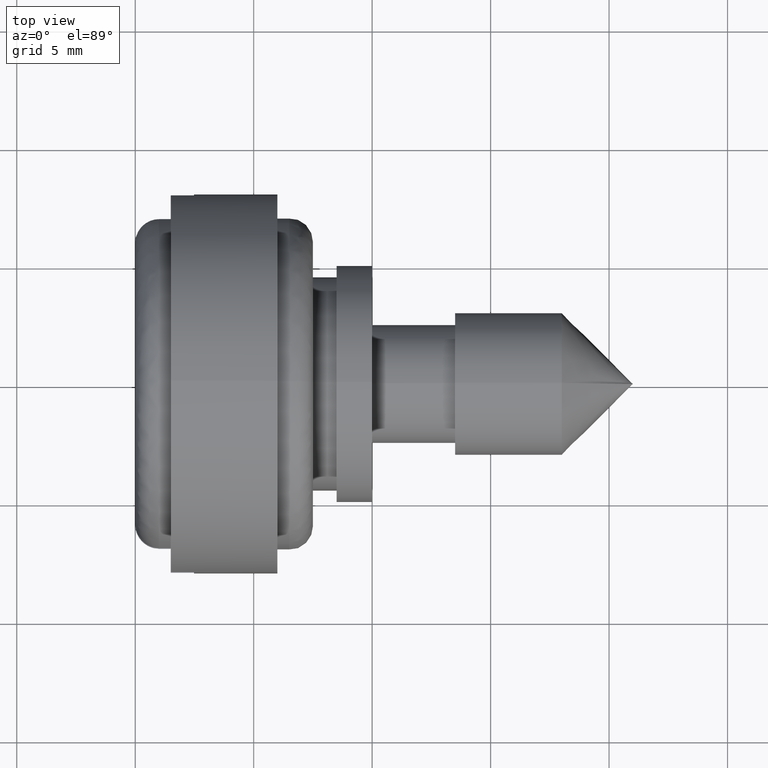
[diagram: clean part render]
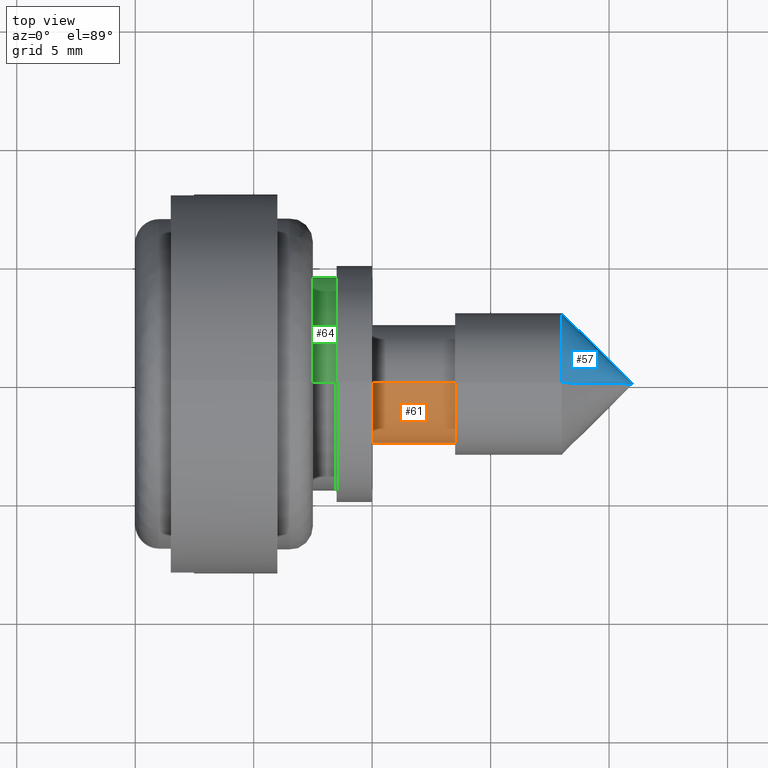
[diagram: same view with three faces highlighted in distinct colors, each labeled with its STEP entity id]
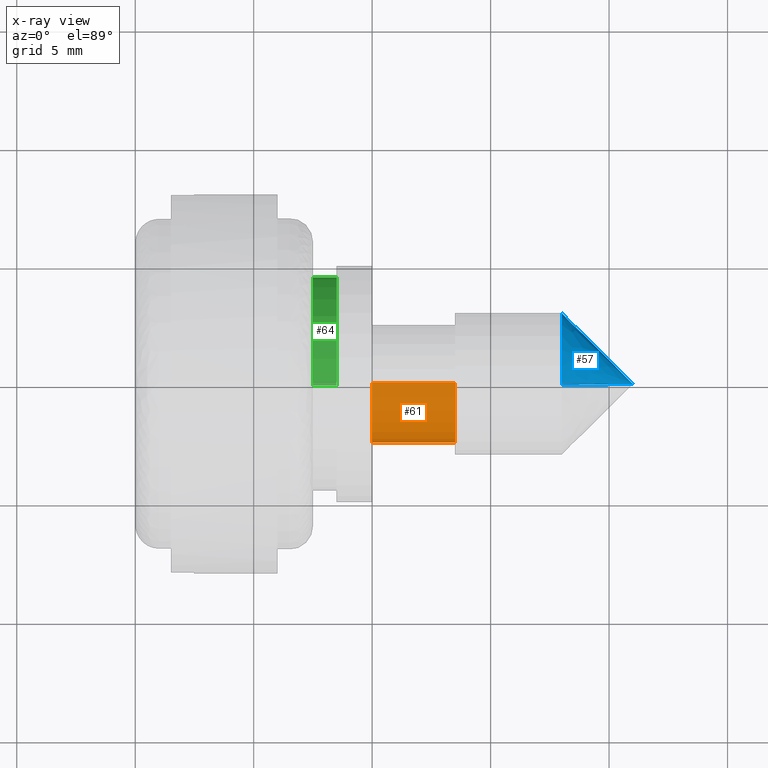
[diagram: x-ray of the same camera — body ghosted, the three highlighted faces saturated]
A machine part, top view with three faces highlighted in distinct colors.
The next image is the same camera in x-ray (body ghosted, the three faces saturated) — at least one of them is partly hidden behind the body in this view.
Their STEP definitions:

[orange] entity #61 — the highlighted cylindrical surface (partial cylindrical patch) has radius 2.5 mm, axis along (1, -0, -0).
#61=ADVANCED_FACE('',(#288),#287,.T.);
#287=CYLINDRICAL_SURFACE('',#564,2.50000000000E+00);
#288=FACE_OUTER_BOUND('',#565,.T.);
#561=CARTESIAN_POINT('',(0.00000000000E+00,0.00000000000E+00,0.00000000000E+00));
#562=DIRECTION('',(1.00000000000E+00,-0.00000000000E+00,-0.00000000000E+00));
#563=DIRECTION('',(-0.00000000000E+00,-0.00000000000E+00,-1.00000000000E+00));
#564=AXIS2_PLACEMENT_3D('',#561,#562,#563);
#565=EDGE_LOOP('',(#750,#751,#752,#753));
#750=ORIENTED_EDGE('',*,*,#843,.F.);
#751=ORIENTED_EDGE('',*,*,#860,.T.);
#752=ORIENTED_EDGE('',*,*,#838,.T.);
#753=ORIENTED_EDGE('',*,*,#861,.F.);
#838=EDGE_CURVE('',#1117,#1118,#1119,.T.);
#843=EDGE_CURVE('',#1146,#1145,#1153,.T.);
#860=EDGE_CURVE('',#1146,#1117,#1267,.T.);
#861=EDGE_CURVE('',#1145,#1118,#1273,.T.);
#1117=VERTEX_POINT('',#1530);
#1118=VERTEX_POINT('',#1531);
#1119=CIRCLE('',#1535,2.50000000000E+00);
#1145=VERTEX_POINT('',#1550);
#1146=VERTEX_POINT('',#1551);
#1153=CIRCLE('',#1559,2.50000000000E+00);
#1267=(BOUNDED_CURVE() B_SPLINE_CURVE(1,(#1628,#1629),.UNSPECIFIED.,.F.,.F.) B_SPLINE_CURVE_WITH_KNOTS((2,2),(8.33333358172E-02,9.16666664408E-01),.UNSPECIFIED.) CURVE() GEOMETRIC_REPRESENTATION_ITEM() RATIONAL_B_SPLINE_CURVE((1.00000000000E+00,1.00000000000E+00)) REPRESENTATION_ITEM('') );
#1273=(BOUNDED_CURVE() B_SPLINE_CURVE(1,(#1630,#1631),.UNSPECIFIED.,.F.,.F.) B_SPLINE_CURVE_WITH_KNOTS((2,2),(8.33333333333E-02,9.16666666667E-01),.UNSPECIFIED.) CURVE() GEOMETRIC_REPRESENTATION_ITEM() RATIONAL_B_SPLINE_CURVE((7.50000000000E-01,7.50000000000E-01)) REPRESENTATION_ITEM('') );
#1530=CARTESIAN_POINT('',(1.35000000000E+01,1.48029736617E-16,-2.50000000000E+00));
#1531=CARTESIAN_POINT('',(1.35000000000E+01,0.00000000000E+00,2.50000000000E+00));
#1532=CARTESIAN_POINT('',(1.35000000000E+01,0.00000000000E+00,0.00000000000E+00));
#1533=DIRECTION('',(-1.00000000000E+00,0.00000000000E+00,0.00000000000E+00));
#1534=DIRECTION('',(0.00000000000E+00,-1.22460635382E-16,1.00000000000E+00));
#1535=AXIS2_PLACEMENT_3D('',#1532,#1533,#1534);
#1550=CARTESIAN_POINT('',(1.00000000000E+01,0.00000000000E+00,2.50000000000E+00));
#1551=CARTESIAN_POINT('',(1.00000000000E+01,1.48029736617E-16,-2.50000000000E+00));
#1556=CARTESIAN_POINT('',(1.00000000000E+01,0.00000000000E+00,0.00000000000E+00));
#1557=DIRECTION('',(-1.00000000000E+00,0.00000000000E+00,0.00000000000E+00));
#1558=DIRECTION('',(0.00000000000E+00,-1.22460635382E-16,1.00000000000E+00));
#1559=AXIS2_PLACEMENT_3D('',#1556,#1557,#1558);
#1628=CARTESIAN_POINT('',(1.00000000104E+01,0.00000000000E+00,-2.50000000000E+00));
#1629=CARTESIAN_POINT('',(1.34999999905E+01,0.00000000000E+00,-2.50000000000E+00));
#1630=CARTESIAN_POINT('',(1.00000000000E+01,-1.48029736617E-16,2.50000000000E+00));
#1631=CARTESIAN_POINT('',(1.35000000000E+01,-1.48029736617E-16,2.50000000000E+00));

[blue] entity #57 — the highlighted face is a freeform B-spline surface patch.
#57=ADVANCED_FACE('',(#248),#247,.T.);
#247=( BOUNDED_SURFACE() B_SPLINE_SURFACE( 2,1,((#535,#536),(#537,#538),(#539,#540),(#541,#542),(#543,#544)), .UNSPECIFIED.,.F.,.F.,.F.) B_SPLINE_SURFACE_WITH_KNOTS((3,2,3),(2,2),(0.00000000000E+00,5.00000000000E-01,1.00000000000E+00),(0.00000000000E+00,1.00000000000E+00), .UNSPECIFIED. ) GEOMETRIC_REPRESENTATION_ITEM() RATIONAL_B_SPLINE_SURFACE(((1.00000000000E+00,1.00000000000E+00),(7.07106781187E-01,7.07106781187E-01),(1.00000000000E+00,1.00000000000E+00),(7.07106781187E-01,7.07106781187E-01),(1.00000000000E+00,1.00000000000E+00))) REPRESENTATION_ITEM('') SURFACE() );
#248=FACE_OUTER_BOUND('',#545,.T.);
#535=CARTESIAN_POINT('',(2.10000000000E+01,0.00000000000E+00,0.00000000000E+00));
#536=CARTESIAN_POINT('',(1.67573593129E+01,5.19573633741E-16,4.24264068712E+00));
#537=CARTESIAN_POINT('',(2.10000000000E+01,0.00000000000E+00,0.00000000000E+00));
#538=CARTESIAN_POINT('',(1.67573593129E+01,4.24264068712E+00,4.24264068712E+00));
#539=CARTESIAN_POINT('',(2.10000000000E+01,0.00000000000E+00,0.00000000000E+00));
#540=CARTESIAN_POINT('',(1.67573593129E+01,4.24264068712E+00,-2.59786816871E-16));
#541=CARTESIAN_POINT('',(2.10000000000E+01,0.00000000000E+00,0.00000000000E+00));
#542=CARTESIAN_POINT('',(1.67573593129E+01,4.24264068712E+00,-4.24264068712E+00));
#543=CARTESIAN_POINT('',(2.10000000000E+01,0.00000000000E+00,0.00000000000E+00));
#544=CARTESIAN_POINT('',(1.67573593129E+01,0.00000000000E+00,-4.24264068712E+00));
#545=EDGE_LOOP('',(#735,#736,#737));
#735=ORIENTED_EDGE('',*,*,#855,.T.);
#736=ORIENTED_EDGE('',*,*,#857,.F.);
#737=ORIENTED_EDGE('',*,*,#856,.F.);
#855=EDGE_CURVE('',#1236,#1228,#1237,.T.);
#856=EDGE_CURVE('',#1236,#1229,#1243,.T.);
#857=EDGE_CURVE('',#1229,#1228,#1249,.T.);
#1228=VERTEX_POINT('',#1609);
#1229=VERTEX_POINT('',#1610);
#1236=VERTEX_POINT('',#1615);
#1237=(BOUNDED_CURVE() B_SPLINE_CURVE(1,(#1616,#1617),.UNSPECIFIED.,.F.,.F.) B_SPLINE_CURVE_WITH_KNOTS((2,2),(0.00000000000E+00,7.07106783987E-01),.UNSPECIFIED.) CURVE() GEOMETRIC_REPRESENTATION_ITEM() RATIONAL_B_SPLINE_CURVE((1.00000000000E+00,1.00000000000E+00)) REPRESENTATION_ITEM('') );
#1243=(BOUNDED_CURVE() B_SPLINE_CURVE(1,(#1618,#1619),.UNSPECIFIED.,.F.,.F.) B_SPLINE_CURVE_WITH_KNOTS((2,2),(0.00000000000E+00,7.07106780467E-01),.UNSPECIFIED.) CURVE() GEOMETRIC_REPRESENTATION_ITEM() RATIONAL_B_SPLINE_CURVE((7.50000000000E-01,7.50000000000E-01)) REPRESENTATION_ITEM('') );
#1249=CIRCLE('',#1623,3.00000000000E+00);
#1609=CARTESIAN_POINT('',(1.80000000000E+01,0.00000000000E+00,-3.00000000000E+00));
#1610=CARTESIAN_POINT('',(1.80000000000E+01,0.00000000000E+00,3.00000000000E+00));
#1615=CARTESIAN_POINT('',(2.10000000000E+01,0.00000000000E+00,0.00000000000E+00));
#1616=CARTESIAN_POINT('',(2.10000000000E+01,0.00000000000E+00,0.00000000000E+00));
#1617=CARTESIAN_POINT('',(1.79999999881E+01,-7.34763815203E-16,-3.00000001188E+00));
#1618=CARTESIAN_POINT('',(2.10000000000E+01,0.00000000000E+00,0.00000000000E+00));
#1619=CARTESIAN_POINT('',(1.80000000031E+01,8.37382643779E-16,2.99999999695E+00));
#1620=CARTESIAN_POINT('',(1.80000000000E+01,0.00000000000E+00,0.00000000000E+00));
#1621=DIRECTION('',(-1.00000000000E+00,0.00000000000E+00,0.00000000000E+00));
#1622=DIRECTION('',(0.00000000000E+00,-1.22460635382E-16,1.00000000000E+00));
#1623=AXIS2_PLACEMENT_3D('',#1620,#1621,#1622);

[green] entity #64 — the highlighted cylindrical surface (partial cylindrical patch) has radius 4.5 mm, axis along (1, -0, -0).
#64=ADVANCED_FACE('',(#318),#317,.T.);
#317=CYLINDRICAL_SURFACE('',#579,4.50000000000E+00);
#318=FACE_OUTER_BOUND('',#580,.T.);
#576=CARTESIAN_POINT('',(0.00000000000E+00,0.00000000000E+00,0.00000000000E+00));
#577=DIRECTION('',(1.00000000000E+00,-0.00000000000E+00,-0.00000000000E+00));
#578=DIRECTION('',(-0.00000000000E+00,-0.00000000000E+00,-1.00000000000E+00));
#579=AXIS2_PLACEMENT_3D('',#576,#577,#578);
#580=EDGE_LOOP('',(#762,#763,#764,#765));
#762=ORIENTED_EDGE('',*,*,#847,.T.);
#763=ORIENTED_EDGE('',*,*,#864,.F.);
#764=ORIENTED_EDGE('',*,*,#850,.F.);
#765=ORIENTED_EDGE('',*,*,#865,.T.);
#847=EDGE_CURVE('',#1174,#1173,#1181,.T.);
#850=EDGE_CURVE('',#1201,#1202,#1203,.T.);
#864=EDGE_CURVE('',#1202,#1173,#1291,.T.);
#865=EDGE_CURVE('',#1201,#1174,#1297,.T.);
#1173=VERTEX_POINT('',#1570);
#1174=VERTEX_POINT('',#1571);
#1181=CIRCLE('',#1579,4.50000000000E+00);
#1201=VERTEX_POINT('',#1590);
#1202=VERTEX_POINT('',#1591);
#1203=CIRCLE('',#1595,4.50000000000E+00);
#1291=(BOUNDED_CURVE() B_SPLINE_CURVE(1,(#1636,#1637),.UNSPECIFIED.,.F.,.F.) B_SPLINE_CURVE_WITH_KNOTS((2,2),(8.33332935974E-02,9.16666633252E-01),.UNSPECIFIED.) CURVE() GEOMETRIC_REPRESENTATION_ITEM() RATIONAL_B_SPLINE_CURVE((1.00000000000E+00,1.00000000000E+00)) REPRESENTATION_ITEM('') );
#1297=(BOUNDED_CURVE() B_SPLINE_CURVE(1,(#1638,#1639),.UNSPECIFIED.,.F.,.F.) B_SPLINE_CURVE_WITH_KNOTS((2,2),(8.33333333333E-02,9.16666666667E-01),.UNSPECIFIED.) CURVE() GEOMETRIC_REPRESENTATION_ITEM() RATIONAL_B_SPLINE_CURVE((7.50000000000E-01,7.50000000000E-01)) REPRESENTATION_ITEM('') );
#1570=CARTESIAN_POINT('',(8.50000000000E+00,2.96059473233E-16,-4.50000000000E+00));
#1571=CARTESIAN_POINT('',(8.50000000000E+00,0.00000000000E+00,4.50000000000E+00));
#1576=CARTESIAN_POINT('',(8.50000000000E+00,0.00000000000E+00,0.00000000000E+00));
#1577=DIRECTION('',(-1.00000000000E+00,0.00000000000E+00,0.00000000000E+00));
#1578=DIRECTION('',(0.00000000000E+00,-1.22460635382E-16,1.00000000000E+00));
#1579=AXIS2_PLACEMENT_3D('',#1576,#1577,#1578);
#1590=CARTESIAN_POINT('',(7.50000000000E+00,0.00000000000E+00,4.50000000000E+00));
#1591=CARTESIAN_POINT('',(7.50000000000E+00,2.96059473233E-16,-4.50000000000E+00));
#1592=CARTESIAN_POINT('',(7.50000000000E+00,0.00000000000E+00,0.00000000000E+00));
#1593=DIRECTION('',(-1.00000000000E+00,0.00000000000E+00,0.00000000000E+00));
#1594=DIRECTION('',(0.00000000000E+00,-1.22460635382E-16,1.00000000000E+00));
#1595=AXIS2_PLACEMENT_3D('',#1592,#1593,#1594);
#1636=CARTESIAN_POINT('',(7.49999995232E+00,0.00000000000E+00,-4.50000000000E+00));
#1637=CARTESIAN_POINT('',(8.49999995990E+00,0.00000000000E+00,-4.50000000000E+00));
#1638=CARTESIAN_POINT('',(7.50000000000E+00,-2.96059473233E-16,4.50000000000E+00));
#1639=CARTESIAN_POINT('',(8.50000000000E+00,-2.96059473233E-16,4.50000000000E+00));